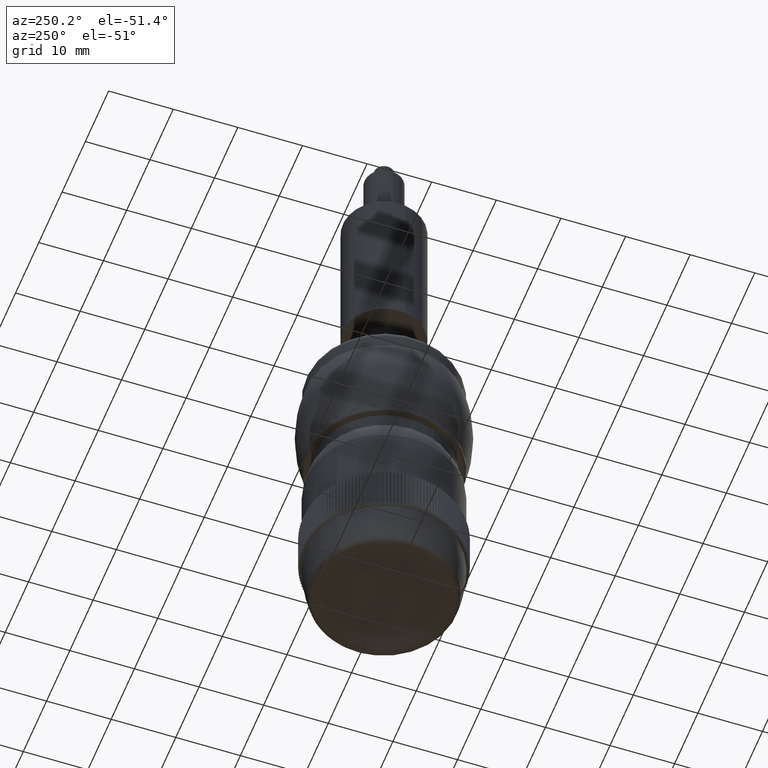
[diagram: clean part render]
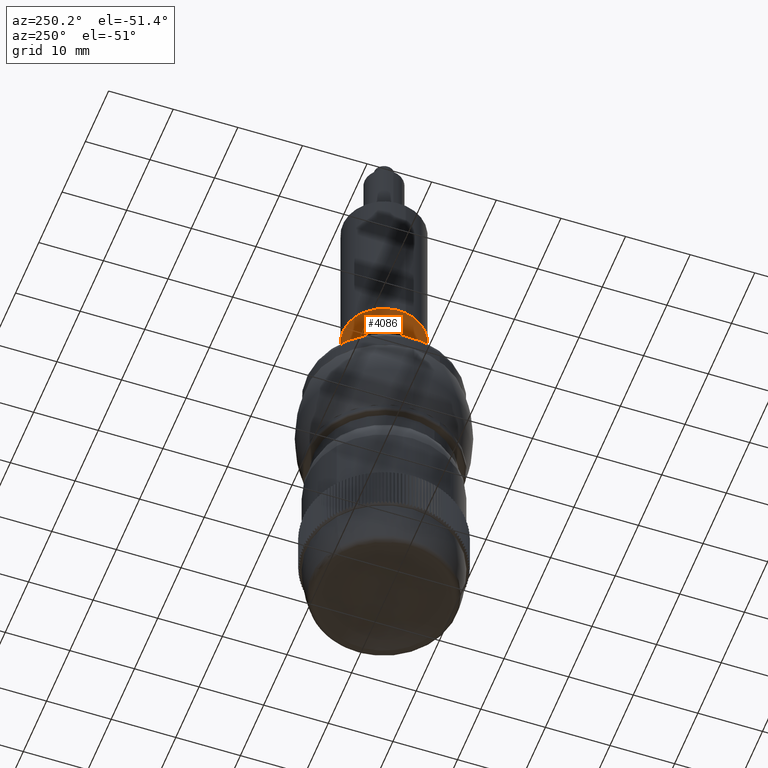
[diagram: same view with one face highlighted and labeled with its STEP entity id]
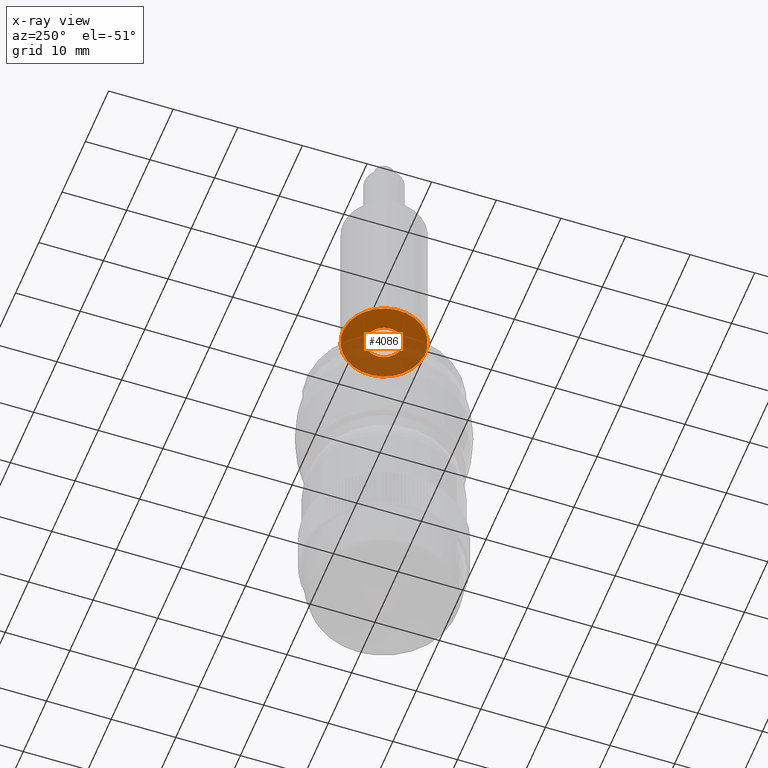
[diagram: x-ray of the same camera — body ghosted, the highlighted face saturated]
A machine part, auxiliary view. The second image highlights one B-rep face of the part: STEP entity #4086.
The next image is the same camera in x-ray: the body ghosted, the highlighted face saturated — about 55% of this face is hidden behind the body in this view.
In plain terms, the highlighted planar face has unit normal (0, 0, 1).
Its self-contained STEP definition (entity closure, byte-faithful):
#4037 = ORIENTED_EDGE ( 'NONE', *, *, #4042, .F. ) ;
#4038 = ORIENTED_EDGE ( 'NONE', *, *, #4049, .F. ) ;
#4042 = EDGE_CURVE ( 'NONE', #4101, #4109, #16989, .T. ) ;
#4045 = EDGE_LOOP ( 'NONE', ( #4091, #4107 ) ) ;
#4049 = EDGE_CURVE ( 'NONE', #4109, #4101, #17032, .T. ) ;
#4086 = ADVANCED_FACE ( 'NONE', ( #17201, #17200 ), #17182, .F. ) ;
#4089 = EDGE_CURVE ( 'NONE', #4092, #4090, #17230, .T. ) ;
#4090 = VERTEX_POINT ( 'NONE', #17225 ) ;
#4091 = ORIENTED_EDGE ( 'NONE', *, *, #4089, .F. ) ;
#4092 = VERTEX_POINT ( 'NONE', #17224 ) ;
#4101 = VERTEX_POINT ( 'NONE', #17213 ) ;
#4103 = EDGE_CURVE ( 'NONE', #4090, #4092, #17208, .T. ) ;
#4107 = ORIENTED_EDGE ( 'NONE', *, *, #4103, .F. ) ;
#4108 = EDGE_LOOP ( 'NONE', ( #4037, #4038 ) ) ;
#4109 = VERTEX_POINT ( 'NONE', #17256 ) ;
#16985 = DIRECTION ( 'NONE',  ( 0.9842299841851152000, 0.1768935788291017600, 0.0000000000000000000 ) ) ;
#16986 = DIRECTION ( 'NONE',  ( 0.0000000000000000000, 0.0000000000000000000, 1.000000000000000000 ) ) ;
#16987 = CARTESIAN_POINT ( 'NONE',  ( -0.1372700539044543200, -0.006681459373031536900, -0.2811464969426555300 ) ) ;
#16988 = AXIS2_PLACEMENT_3D ( 'NONE', #16987, #16986, #16985 ) ;
#16989 = CIRCLE ( 'NONE', #16988, 0.2500000000000001100 ) ;
#17028 = DIRECTION ( 'NONE',  ( 0.9842299841851152000, 0.1768935788291017600, 0.0000000000000000000 ) ) ;
#17029 = DIRECTION ( 'NONE',  ( 0.0000000000000000000, 0.0000000000000000000, 1.000000000000000000 ) ) ;
#17030 = CARTESIAN_POINT ( 'NONE',  ( -0.1372700539044543200, -0.006681459373031536900, -0.2811464969426555300 ) ) ;
#17031 = AXIS2_PLACEMENT_3D ( 'NONE', #17030, #17029, #17028 ) ;
#17032 = CIRCLE ( 'NONE', #17031, 0.2500000000000001100 ) ;
#17179 = DIRECTION ( 'NONE',  ( 0.0000000000000000000, 0.0000000000000000000, 1.000000000000000000 ) ) ;
#17180 = CARTESIAN_POINT ( 'NONE',  ( -0.1372700539044543200, -0.006681459373031536900, -0.2811464969426555300 ) ) ;
#17181 = AXIS2_PLACEMENT_3D ( 'NONE', #17180, #17179, #17236 ) ;
#17182 = PLANE ( 'NONE',  #17181 ) ;
#17200 = FACE_OUTER_BOUND ( 'NONE', #4108, .T. ) ;
#17201 = FACE_BOUND ( 'NONE', #4045, .T. ) ;
#17208 = CIRCLE ( 'NONE', #17266, 0.1082677165354330700 ) ;
#17213 = CARTESIAN_POINT ( 'NONE',  ( 0.1087874421418246100, 0.03754193533424392300, -0.2811464969426555300 ) ) ;
#17224 = CARTESIAN_POINT ( 'NONE',  ( -0.03070972097102647400, 0.01247040447657593900, -0.2811464969426555300 ) ) ;
#17225 = CARTESIAN_POINT ( 'NONE',  ( -0.2438303868378821600, -0.02583332322263899900, -0.2811464969426555300 ) ) ;
#17226 = DIRECTION ( 'NONE',  ( 0.9842299841851153100, 0.1768935788291017800, 0.0000000000000000000 ) ) ;
#17227 = DIRECTION ( 'NONE',  ( 0.0000000000000000000, 0.0000000000000000000, -1.000000000000000000 ) ) ;
#17228 = CARTESIAN_POINT ( 'NONE',  ( -0.1372700539044543200, -0.006681459373031536900, -0.2811464969426555300 ) ) ;
#17229 = AXIS2_PLACEMENT_3D ( 'NONE', #17228, #17227, #17226 ) ;
#17230 = CIRCLE ( 'NONE', #17229, 0.1082677165354330700 ) ;
#17236 = DIRECTION ( 'NONE',  ( 0.9842299841851153100, 0.1768935788291017800, 0.0000000000000000000 ) ) ;
#17256 = CARTESIAN_POINT ( 'NONE',  ( -0.3833275499507332600, -0.05090485408030698300, -0.2811464969426555300 ) ) ;
#17263 = DIRECTION ( 'NONE',  ( 0.9842299841851153100, 0.1768935788291017800, 0.0000000000000000000 ) ) ;
#17264 = DIRECTION ( 'NONE',  ( 0.0000000000000000000, 0.0000000000000000000, -1.000000000000000000 ) ) ;
#17265 = CARTESIAN_POINT ( 'NONE',  ( -0.1372700539044543200, -0.006681459373031536900, -0.2811464969426555300 ) ) ;
#17266 = AXIS2_PLACEMENT_3D ( 'NONE', #17265, #17264, #17263 ) ;